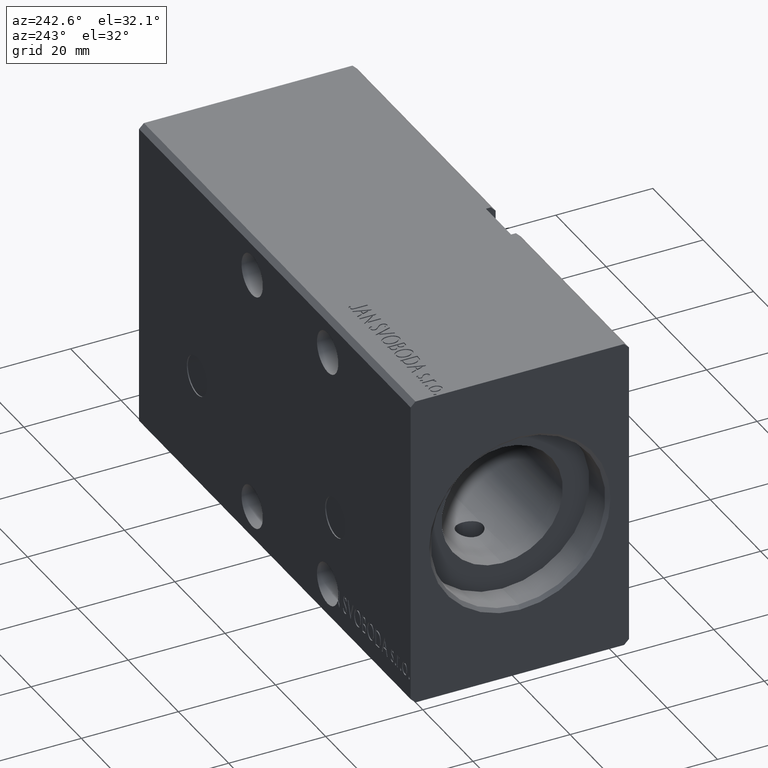
[diagram: clean part render]
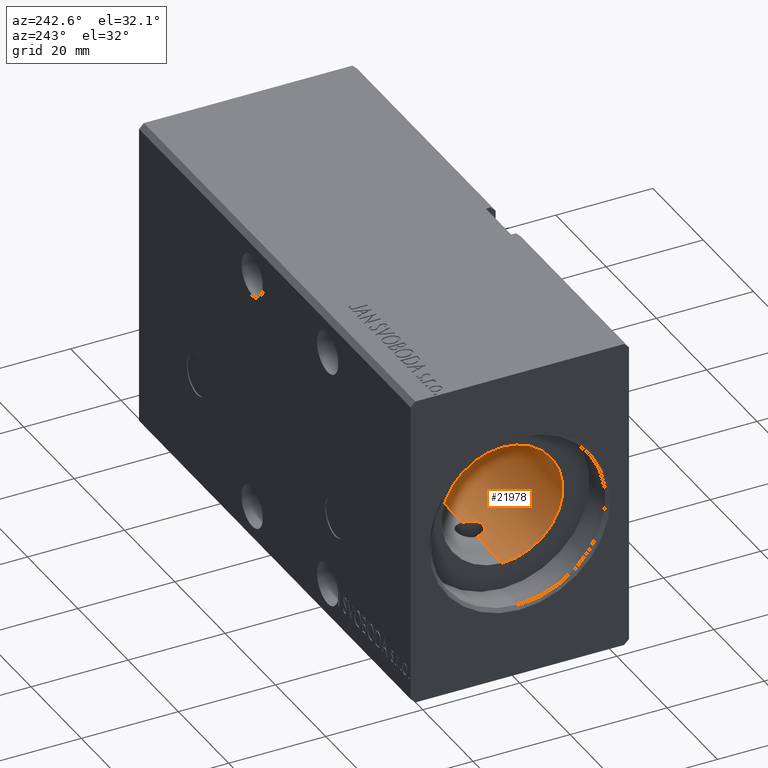
[diagram: same view with one face highlighted and labeled with its STEP entity id]
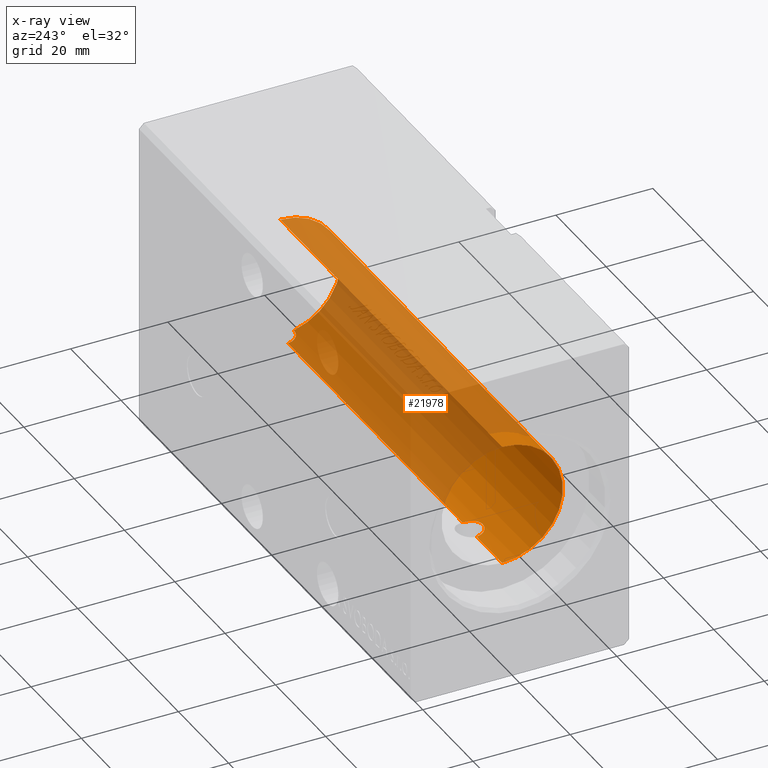
[diagram: x-ray of the same camera — body ghosted, the highlighted face saturated]
A machine part, auxiliary view. The second image highlights one B-rep face of the part: STEP entity #21978.
The next image is the same camera in x-ray: the body ghosted, the highlighted face saturated — about 73% of this face is hidden behind the body in this view.
In plain terms, the highlighted cylindrical surface (partial cylindrical patch) has radius 12.5 mm, axis along (-1, -0, -0).
Its self-contained STEP definition (entity closure, byte-faithful):
#712 = ORIENTED_EDGE ( 'NONE', *, *, #18492, .T. ) ;
#923 = B_SPLINE_CURVE_WITH_KNOTS ( 'NONE', 3,
 ( #32350, #1095, #14272, #26455, #23406, #7967, #35599, #39050, #11214, #23606, #10428, #4924, #35998, #32744, #7369, #19577, #17313, #26248, #31959, #29493, #17105, #4134, #29701, #13867, #13485, #13680, #25867, #4332 ),
 .UNSPECIFIED., .F., .F.,
 ( 4, 2, 2, 2, 2, 2, 2, 2, 2, 2, 2, 2, 2, 4 ),
 ( 0.008624191108698782415, 0.009701931017304708457, 0.01024080097160767061, 0.01077967092591063276, 0.01131854088021359492, 0.01185741083451655881, 0.01293515074312248485, 0.01347402069742544874, 0.01401289065172841089, 0.01455176060603137478, 0.01509063056033433520, 0.01616837046894026297, 0.01670724042324322686, 0.01724611037754619075 ),
 .UNSPECIFIED. ) ;
#1047 = DIRECTION ( 'NONE',  ( -1.000000000000000000, -0.000000000000000000, -0.000000000000000000 ) ) ;
#1095 = CARTESIAN_POINT ( 'NONE',  ( 22.75000000000000000, -0.3594857543935715549, -12.50000000000000000 ) ) ;
#1600 = AXIS2_PLACEMENT_3D ( 'NONE', #32174, #34436, #35221 ) ;
#1958 = DIRECTION ( 'NONE',  ( -1.000000000000000000, -0.000000000000000000, -0.000000000000000000 ) ) ;
#2100 = EDGE_LOOP ( 'NONE', ( #25881, #2920, #25328, #712, #14076, #19139, #26416 ) ) ;
#2681 = VERTEX_POINT ( 'NONE', #20212 ) ;
#2827 = VERTEX_POINT ( 'NONE', #5180 ) ;
#2920 = ORIENTED_EDGE ( 'NONE', *, *, #8938, .T. ) ;
#4134 = CARTESIAN_POINT ( 'NONE',  ( 17.80393035758983800, -1.693331246281262414, -12.38741007596727250 ) ) ;
#4326 = CARTESIAN_POINT ( 'NONE',  ( 7.000000000000006217, 0.000000000000000000, 0.000000000000000000 ) ) ;
#4332 = CARTESIAN_POINT ( 'NONE',  ( 17.24999999999999645, -6.410479088651825822E-16, -12.50000000000000000 ) ) ;
#4924 = CARTESIAN_POINT ( 'NONE',  ( 20.72193900340274908, -2.678077841496246503, -12.21056965450630294 ) ) ;
#5179 = CARTESIAN_POINT ( 'NONE',  ( 95.20000000000000284, 1.530808498934191521E-15, -12.50000000000000000 ) ) ;
#5180 = CARTESIAN_POINT ( 'NONE',  ( 95.20000000000000284, -2.742717630380508531, -12.19538847269737225 ) ) ;
#5636 = VERTEX_POINT ( 'NONE', #8189 ) ;
#5719 = CARTESIAN_POINT ( 'NONE',  ( 93.41636537538076368, -2.256054185087565056, -12.29512045788552577 ) ) ;
#5956 = DIRECTION ( 'NONE',  ( -1.000000000000000000, -0.000000000000000000, -0.000000000000000000 ) ) ;
#6451 = EDGE_CURVE ( 'NONE', #2681, #27516, #923, .T. ) ;
#6485 = CARTESIAN_POINT ( 'NONE',  ( 95.20000000000000284, 0.000000000000000000, 12.50000000000000000 ) ) ;
#7369 = CARTESIAN_POINT ( 'NONE',  ( 19.64081312293245318, -2.732363470008690509, -12.19776519060171793 ) ) ;
#7967 = CARTESIAN_POINT ( 'NONE',  ( 22.18559702430409786, -1.678694069001123390, -12.38768223437475235 ) ) ;
#8159 = CARTESIAN_POINT ( 'NONE',  ( 95.20000000000000284, -2.742717630380508531, -12.19538847269737225 ) ) ;
#8189 = CARTESIAN_POINT ( 'NONE',  ( 7.000000000000006217, 0.000000000000000000, 12.50000000000000000 ) ) ;
#8566 = CARTESIAN_POINT ( 'NONE',  ( 93.73734943586300972, -2.450182169396491361, -12.25791070683490602 ) ) ;
#8600 = LINE ( 'NONE', #32975, #38586 ) ;
#8938 = EDGE_CURVE ( 'NONE', #22497, #2681, #27129, .T. ) ;
#9987 = CARTESIAN_POINT ( 'NONE',  ( 95.20000000000000284, 0.000000000000000000, 0.000000000000000000 ) ) ;
#10428 = CARTESIAN_POINT ( 'NONE',  ( 21.22284594842850325, -2.469786832673805055, -12.25378231626125114 ) ) ;
#11006 = CARTESIAN_POINT ( 'NONE',  ( 92.64803346153223629, -1.437529159557713099, -12.41803794242192005 ) ) ;
#11214 = CARTESIAN_POINT ( 'NONE',  ( 21.67788464345698074, -2.186140702424582916, -12.30776293449189218 ) ) ;
#11410 = CARTESIAN_POINT ( 'NONE',  ( 92.25000000000000000, 1.530808498934191127E-15, -12.50000000000000000 ) ) ;
#11934 = CARTESIAN_POINT ( 'NONE',  ( 92.25000000000000000, 1.530808498934191127E-15, -12.50000000000000000 ) ) ;
#13485 = CARTESIAN_POINT ( 'NONE',  ( 17.33889423267951457, -0.7167498857967393722, -12.48069645505988490 ) ) ;
#13680 = CARTESIAN_POINT ( 'NONE',  ( 17.26794121566710416, -0.3620346704467073962, -12.49601717746613083 ) ) ;
#13867 = CARTESIAN_POINT ( 'NONE',  ( 17.39235660293251229, -0.8915091606273424230, -12.46927266348502172 ) ) ;
#13986 = AXIS2_PLACEMENT_3D ( 'NONE', #4326, #25861, #22800 ) ;
#14076 = ORIENTED_EDGE ( 'NONE', *, *, #17882, .T. ) ;
#14272 = CARTESIAN_POINT ( 'NONE',  ( 22.67752993399135519, -0.7223728479637269162, -12.48353293779831041 ) ) ;
#14726 = LINE ( 'NONE', #5179, #38842 ) ;
#14868 = CARTESIAN_POINT ( 'NONE',  ( 94.44815639487987369, -2.700597334441428909, -12.20481170720206521 ) ) ;
#15123 = AXIS2_PLACEMENT_3D ( 'NONE', #9987, #1047, #19719 ) ;
#16817 = EDGE_CURVE ( 'NONE', #2827, #22497, #30423, .T. ) ;
#17105 = CARTESIAN_POINT ( 'NONE',  ( 18.18303496097383842, -2.071964331967047990, -12.32774466729451213 ) ) ;
#17313 = CARTESIAN_POINT ( 'NONE',  ( 19.11268508135160360, -2.609111504363109901, -12.22487130485038165 ) ) ;
#17882 = EDGE_CURVE ( 'NONE', #36106, #5636, #32136, .T. ) ;
#18125 = CARTESIAN_POINT ( 'NONE',  ( 93.26403544102849708, -2.141001519665830521, -12.31595550509747738 ) ) ;
#18492 = EDGE_CURVE ( 'NONE', #27516, #36106, #14726, .T. ) ;
#19139 = ORIENTED_EDGE ( 'NONE', *, *, #30246, .F. ) ;
#19577 = CARTESIAN_POINT ( 'NONE',  ( 19.28811246144865876, -2.662337596427393205, -12.21324053230518203 ) ) ;
#19719 = DIRECTION ( 'NONE',  ( 0.000000000000000000, 0.000000000000000000, 1.000000000000000000 ) ) ;
#20212 = CARTESIAN_POINT ( 'NONE',  ( 22.74999999999999645, 1.530807688571775754E-15, -12.50000000000000000 ) ) ;
#20345 = CARTESIAN_POINT ( 'NONE',  ( 92.86686614383090443, -1.745845535640508484, -12.37845627651902802 ) ) ;
#20761 = CARTESIAN_POINT ( 'NONE',  ( 92.55546254462991840, -1.273488671789368532, -12.43615163631025133 ) ) ;
#21978 = ADVANCED_FACE ( 'NONE', ( #34770 ), #28859, .F. ) ;
#22497 = VERTEX_POINT ( 'NONE', #11934 ) ;
#22532 = CARTESIAN_POINT ( 'NONE',  ( 17.24999999999999645, -6.410479088651825822E-16, -12.50000000000000000 ) ) ;
#22800 = DIRECTION ( 'NONE',  ( 0.000000000000000000, 0.000000000000000000, 1.000000000000000000 ) ) ;
#23406 = CARTESIAN_POINT ( 'NONE',  ( 22.38562424273980156, -1.379726459265969485, -12.42453378661528518 ) ) ;
#23596 = EDGE_CURVE ( 'NONE', #2827, #32911, #35342, .T. ) ;
#23606 = CARTESIAN_POINT ( 'NONE',  ( 21.38049077597101544, -2.385110744809374683, -12.27075736690464502 ) ) ;
#24007 = CARTESIAN_POINT ( 'NONE',  ( 94.82035895595051045, -2.750542932331160983, -12.19365278940039055 ) ) ;
#24203 = CARTESIAN_POINT ( 'NONE',  ( 94.26321868918930136, -2.656201514649875417, -12.21469322174263894 ) ) ;
#25328 = ORIENTED_EDGE ( 'NONE', *, *, #6451, .T. ) ;
#25861 = DIRECTION ( 'NONE',  ( -1.000000000000000000, 0.000000000000000000, 0.000000000000000000 ) ) ;
#25867 = CARTESIAN_POINT ( 'NONE',  ( 17.25000000000000000, -0.1822513952969495588, -12.50000000000000355 ) ) ;
#25881 = ORIENTED_EDGE ( 'NONE', *, *, #16817, .T. ) ;
#26248 = CARTESIAN_POINT ( 'NONE',  ( 18.78070064630743730, -2.471456998035943542, -12.25344202945496441 ) ) ;
#26416 = ORIENTED_EDGE ( 'NONE', *, *, #23596, .F. ) ;
#26455 = CARTESIAN_POINT ( 'NONE',  ( 22.47155302408678068, -1.219035651181357371, -12.44152548389028823 ) ) ;
#27110 = DIRECTION ( 'NONE',  ( -1.000000000000000000, -0.000000000000000000, -0.000000000000000000 ) ) ;
#27129 = LINE ( 'NONE', #39115, #29764 ) ;
#27252 = CARTESIAN_POINT ( 'NONE',  ( 95.01129327916315503, -2.756478195357856986, -12.19229375011006766 ) ) ;
#27516 = VERTEX_POINT ( 'NONE', #22532 ) ;
#28859 = CYLINDRICAL_SURFACE ( 'NONE', #15123, 12.50000000000000000 ) ;
#29493 = CARTESIAN_POINT ( 'NONE',  ( 18.32327680794583458, -2.187128495874283818, -12.30759172996874362 ) ) ;
#29701 = CARTESIAN_POINT ( 'NONE',  ( 17.59890566233854159, -1.387665903832268954, -12.42717106579813979 ) ) ;
#29764 = VECTOR ( 'NONE', #1958, 1000.000000000000000 ) ;
#30246 = EDGE_CURVE ( 'NONE', #32911, #5636, #8600, .T. ) ;
#30423 = B_SPLINE_CURVE_WITH_KNOTS ( 'NONE', 3,
 ( #8159, #27252, #24007, #14868, #24203, #33550, #8566, #5719, #18125, #38836, #20345, #11006, #20761, #39036, #32731, #39240, #35984, #11410 ),
 .UNSPECIFIED., .F., .F.,
 ( 4, 2, 2, 2, 2, 2, 2, 2, 4 ),
 ( 0.01273840658692359379, 0.01330186956075142188, 0.01386533253457925170, 0.01442879550840708153, 0.01499225848223490962, 0.01555572145606273771, 0.01611918442989056927, 0.01668264740371839736, 0.01724611037754622545 ),
 .UNSPECIFIED. ) ;
#31959 = CARTESIAN_POINT ( 'NONE',  ( 18.62282853337241662, -2.387117607438817846, -12.27037141969695533 ) ) ;
#32136 = CIRCLE ( 'NONE', #13986, 12.50000000000000000 ) ;
#32174 = CARTESIAN_POINT ( 'NONE',  ( 95.20000000000000284, 0.000000000000000000, 0.000000000000000000 ) ) ;
#32350 = CARTESIAN_POINT ( 'NONE',  ( 22.74999999999999645, 1.530807688571775754E-15, -12.50000000000000000 ) ) ;
#32731 = CARTESIAN_POINT ( 'NONE',  ( 92.34717293139657102, -0.7488784512775744640, -12.47892450911127504 ) ) ;
#32744 = CARTESIAN_POINT ( 'NONE',  ( 19.81969333136326483, -2.750077826247134372, -12.19373084646329808 ) ) ;
#32911 = VERTEX_POINT ( 'NONE', #6485 ) ;
#32975 = CARTESIAN_POINT ( 'NONE',  ( 95.20000000000000284, 0.000000000000000000, 12.50000000000000000 ) ) ;
#33550 = CARTESIAN_POINT ( 'NONE',  ( 93.90659980293013120, -2.530361475251265979, -12.24138095936394421 ) ) ;
#34436 = DIRECTION ( 'NONE',  ( -1.000000000000000000, 0.000000000000000000, 0.000000000000000000 ) ) ;
#34770 = FACE_OUTER_BOUND ( 'NONE', #2100, .T. ) ;
#35221 = DIRECTION ( 'NONE',  ( 0.000000000000000000, 0.000000000000000000, 1.000000000000000000 ) ) ;
#35342 = CIRCLE ( 'NONE', #1600, 12.50000000000000000 ) ;
#35599 = CARTESIAN_POINT ( 'NONE',  ( 22.07221874992021426, -1.816738551942332469, -12.36794003061528358 ) ) ;
#35984 = CARTESIAN_POINT ( 'NONE',  ( 92.25000000000000000, -0.1905690090128080716, -12.50000000000000178 ) ) ;
#35998 = CARTESIAN_POINT ( 'NONE',  ( 20.36416266169332800, -2.749843584008485387, -12.19378367403301588 ) ) ;
#36106 = VERTEX_POINT ( 'NONE', #37090 ) ;
#37090 = CARTESIAN_POINT ( 'NONE',  ( 7.000000000000006217, 1.530808498934191521E-15, -12.50000000000000000 ) ) ;
#38586 = VECTOR ( 'NONE', #5956, 1000.000000000000000 ) ;
#38836 = CARTESIAN_POINT ( 'NONE',  ( 92.99021093655997561, -1.886321387699710472, -12.35752560721841320 ) ) ;
#38842 = VECTOR ( 'NONE', #27110, 1000.000000000000000 ) ;
#39036 = CARTESIAN_POINT ( 'NONE',  ( 92.40544625931298128, -0.9304986053563290005, -12.46650766108568043 ) ) ;
#39050 = CARTESIAN_POINT ( 'NONE',  ( 21.81885462682171806, -2.070361649597391995, -12.32802020629775974 ) ) ;
#39115 = CARTESIAN_POINT ( 'NONE',  ( 95.20000000000000284, 1.530808498934191521E-15, -12.50000000000000000 ) ) ;
#39240 = CARTESIAN_POINT ( 'NONE',  ( 92.26959844461927673, -0.3784411936846625024, -12.49564556562839535 ) ) ;